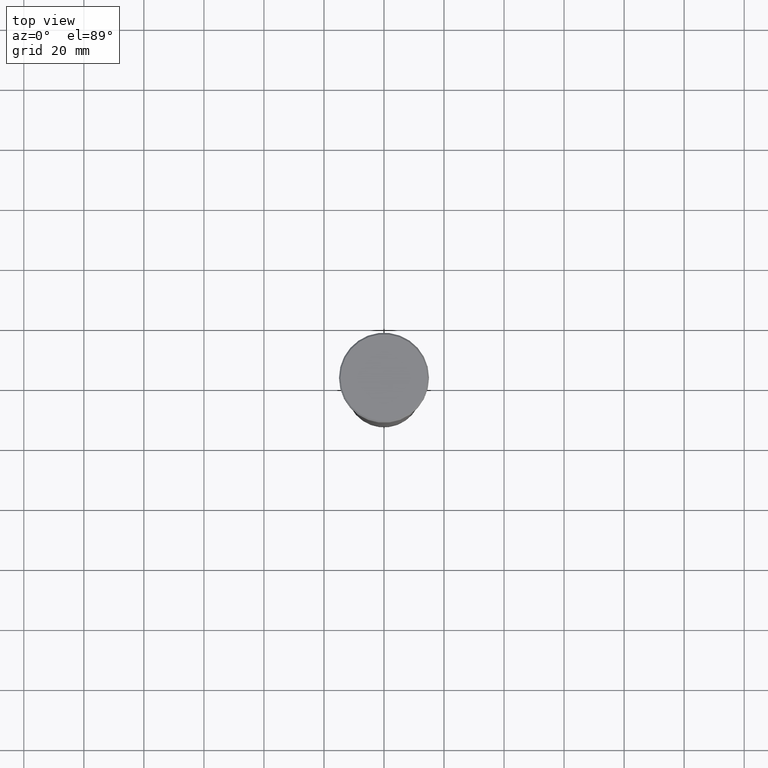
[diagram: clean part render]
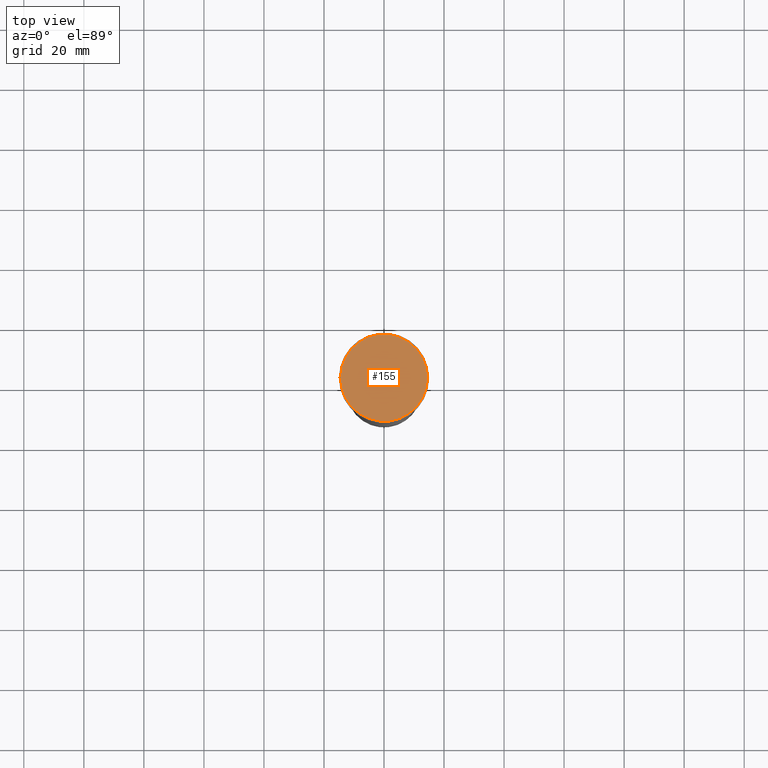
[diagram: same view with one face highlighted and labeled with its STEP entity id]
A machine part, top view. The second image highlights one B-rep face of the part: STEP entity #155.
In plain terms, the highlighted planar face has unit normal (0, -0, 1).
Its self-contained STEP definition (entity closure, byte-faithful):
#58 = CARTESIAN_POINT ( 'NONE',  ( 0.000000000000000000, 0.000000000000000000, 0.000000000000000000 ) ) ;
#135 = FACE_OUTER_BOUND ( 'NONE', #884, .T. ) ;
#155 = ADVANCED_FACE ( 'NONE', ( #135 ), #319, .T. ) ;
#156 = VERTEX_POINT ( 'NONE', #425 ) ;
#181 = CIRCLE ( 'NONE', #345, 14.50000000000001066 ) ;
#259 = DIRECTION ( 'NONE',  ( 1.000000000000000000, 0.000000000000000000, 0.000000000000000000 ) ) ;
#319 = PLANE ( 'NONE',  #744 ) ;
#336 = EDGE_CURVE ( 'NONE', #413, #156, #181, .T. ) ;
#345 = AXIS2_PLACEMENT_3D ( 'NONE', #437, #994, #259 ) ;
#413 = VERTEX_POINT ( 'NONE', #738 ) ;
#421 = EDGE_CURVE ( 'NONE', #156, #413, #564, .T. ) ;
#425 = CARTESIAN_POINT ( 'NONE',  ( 14.50000000000001066, 1.806354028742346591E-15, 0.000000000000000000 ) ) ;
#437 = CARTESIAN_POINT ( 'NONE',  ( 0.000000000000000000, 0.000000000000000000, 0.000000000000000000 ) ) ;
#466 = AXIS2_PLACEMENT_3D ( 'NONE', #900, #987, #816 ) ;
#564 = CIRCLE ( 'NONE', #466, 14.50000000000001066 ) ;
#576 = DIRECTION ( 'NONE',  ( 0.000000000000000000, -0.000000000000000000, 1.000000000000000000 ) ) ;
#672 = ORIENTED_EDGE ( 'NONE', *, *, #421, .T. ) ;
#727 = ORIENTED_EDGE ( 'NONE', *, *, #336, .T. ) ;
#738 = CARTESIAN_POINT ( 'NONE',  ( -14.50000000000001066, 0.000000000000000000, 0.000000000000000000 ) ) ;
#744 = AXIS2_PLACEMENT_3D ( 'NONE', #58, #576, #812 ) ;
#812 = DIRECTION ( 'NONE',  ( 1.000000000000000000, 0.000000000000000000, 0.000000000000000000 ) ) ;
#816 = DIRECTION ( 'NONE',  ( 1.000000000000000000, 0.000000000000000000, 0.000000000000000000 ) ) ;
#884 = EDGE_LOOP ( 'NONE', ( #727, #672 ) ) ;
#900 = CARTESIAN_POINT ( 'NONE',  ( 0.000000000000000000, 0.000000000000000000, 0.000000000000000000 ) ) ;
#987 = DIRECTION ( 'NONE',  ( -0.000000000000000000, -0.000000000000000000, 1.000000000000000000 ) ) ;
#994 = DIRECTION ( 'NONE',  ( -0.000000000000000000, -0.000000000000000000, 1.000000000000000000 ) ) ;